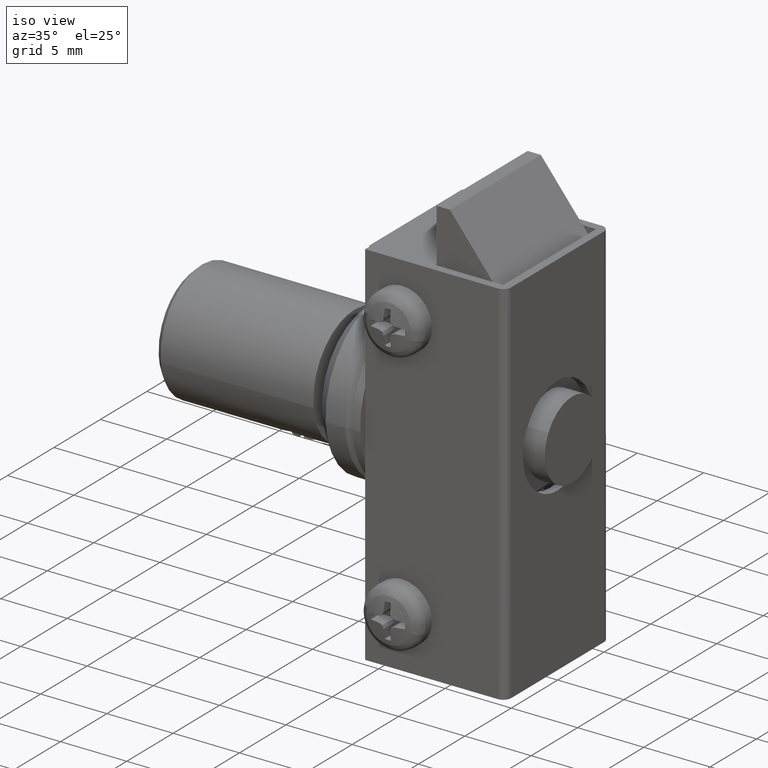
[diagram: clean part render]
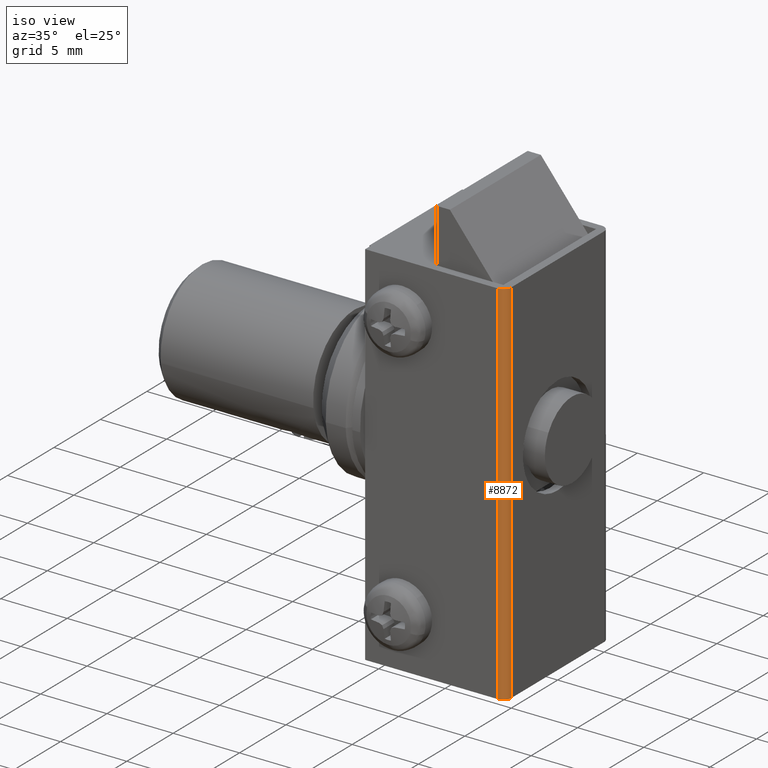
[diagram: same view with one face highlighted and labeled with its STEP entity id]
A machine part, iso view. The second image highlights one B-rep face of the part: STEP entity #8872.
In plain terms, the highlighted face is a freeform B-spline surface patch.
Its self-contained STEP definition (entity closure, byte-faithful):
#8812=CARTESIAN_POINT('',(-0.000205605014666,-4.984299831015366,-0.700000000000001));
#8813=CARTESIAN_POINT('',(-0.000205605014666,-4.984299831015366,28.717500000000008));
#8814=CARTESIAN_POINT('',(0.016934670717595,-5.638860553156562,-0.700000000000001));
#8815=CARTESIAN_POINT('',(0.016934670717595,-5.638860553156562,28.717500000000008));
#8816=CARTESIAN_POINT('',(-0.636629123720913,-5.598886879053211,-0.700000000000001));
#8817=CARTESIAN_POINT('',(-0.636629123720913,-5.598886879053211,28.717500000000008));
#8825=(BOUNDED_SURFACE()B_SPLINE_SURFACE(1,2,((#8812,#8814,#8816),(#8813,#8815,#8817)),.UNSPECIFIED.,.F.,.F.,.U.)B_SPLINE_SURFACE_WITH_KNOTS((2,2),(3,3),(0.0,29.417500000000000),(0.0,1.0),.UNSPECIFIED.)GEOMETRIC_REPRESENTATION_ITEM()RATIONAL_B_SPLINE_SURFACE(((1.0,0.675590207615660,1.0),(1.0,0.675590207615660,1.0)))REPRESENTATION_ITEM('')SURFACE());
#8826=CARTESIAN_POINT('',(9.184559E-016,-5.000006000000091,0.0));
#8827=VERTEX_POINT('',#8826);
#8828=CARTESIAN_POINT('',(-0.600000000000000,-5.600006000000090,0.0));
#8829=VERTEX_POINT('',#8828);
#8830=CARTESIAN_POINT('',(0.0,-5.000006000000091,0.0));
#8831=CARTESIAN_POINT('',(0.0,-5.600006000000092,0.0));
#8832=CARTESIAN_POINT('',(-0.600000000000000,-5.600006000000090,0.0));
#8840=(BOUNDED_CURVE()B_SPLINE_CURVE(2,(#8830,#8831,#8832),.UNSPECIFIED.,.F.,.U.)CURVE()GEOMETRIC_REPRESENTATION_ITEM()QUASI_UNIFORM_CURVE()RATIONAL_B_SPLINE_CURVE((1.0,0.707106781186547,1.0))REPRESENTATION_ITEM(''));
#8841=EDGE_CURVE('',#8827,#8829,#8840,.T.);
#8842=ORIENTED_EDGE('',*,*,#8841,.F.);
#8843=CARTESIAN_POINT('',(9.184559E-016,-5.000006000000091,28.0));
#8844=VERTEX_POINT('',#8843);
#8845=CARTESIAN_POINT('',(9.184559E-016,-5.000006000000091,28.0));
#8846=CARTESIAN_POINT('',(9.184559E-016,-5.000006000000091,0.0));
#8847=QUASI_UNIFORM_CURVE('',1,(#8845,#8846),.UNSPECIFIED.,.F.,.U.);
#8848=EDGE_CURVE('',#8844,#8827,#8847,.T.);
#8849=ORIENTED_EDGE('',*,*,#8848,.F.);
#8850=CARTESIAN_POINT('',(-0.600000000000000,-5.600006000000090,28.0));
#8851=VERTEX_POINT('',#8850);
#8852=CARTESIAN_POINT('',(-0.600000000000000,-5.600006000000090,28.0));
#8853=CARTESIAN_POINT('',(0.0,-5.600006000000092,28.000000000000004));
#8854=CARTESIAN_POINT('',(0.0,-5.000006000000091,28.0));
#8862=(BOUNDED_CURVE()B_SPLINE_CURVE(2,(#8852,#8853,#8854),.UNSPECIFIED.,.F.,.U.)CURVE()GEOMETRIC_REPRESENTATION_ITEM()QUASI_UNIFORM_CURVE()RATIONAL_B_SPLINE_CURVE((1.0,0.707106781186547,1.0))REPRESENTATION_ITEM(''));
#8863=EDGE_CURVE('',#8851,#8844,#8862,.T.);
#8864=ORIENTED_EDGE('',*,*,#8863,.F.);
#8865=CARTESIAN_POINT('',(-0.600000000000000,-5.600006000000090,0.0));
#8866=CARTESIAN_POINT('',(-0.600000000000000,-5.600006000000090,28.0));
#8867=QUASI_UNIFORM_CURVE('',1,(#8865,#8866),.UNSPECIFIED.,.F.,.U.);
#8868=EDGE_CURVE('',#8829,#8851,#8867,.T.);
#8869=ORIENTED_EDGE('',*,*,#8868,.F.);
#8870=EDGE_LOOP('',(#8842,#8849,#8864,#8869));
#8871=FACE_OUTER_BOUND('',#8870,.T.);
#8872=ADVANCED_FACE('',(#8871),#8825,.T.);